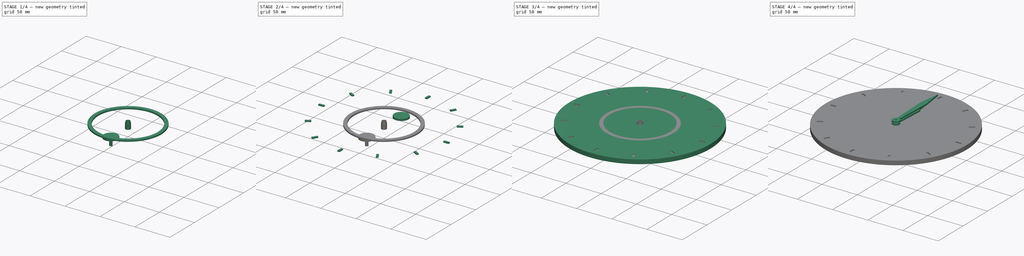
[diagram: build sequence overview — one tinted view per stage of 4, left to right]
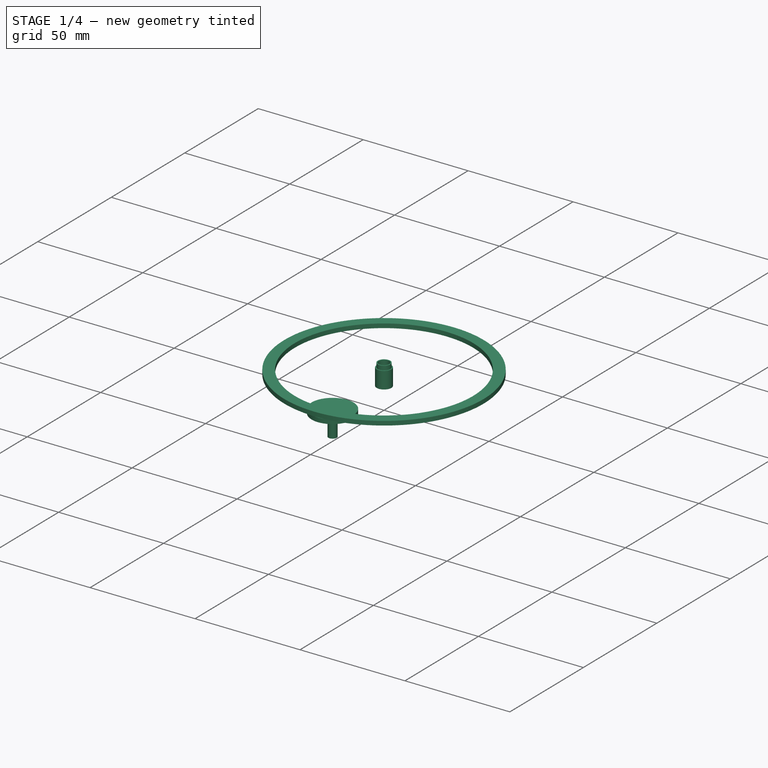
[diagram: stage 1 of 4 — iso view after this stage's code; geometry added in this stage tinted green]
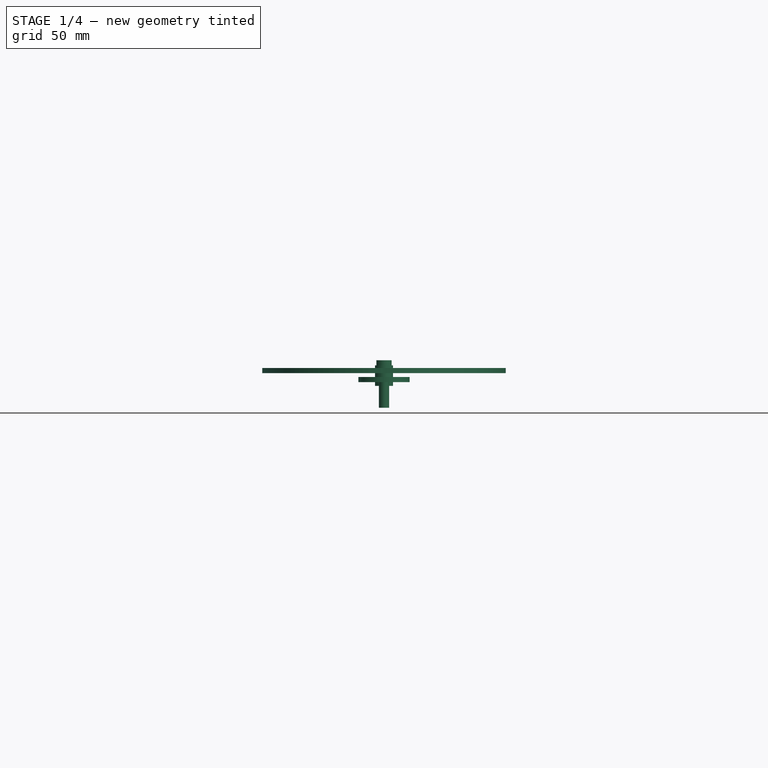
[diagram: stage 1 of 4 — front view after this stage's code; geometry added in this stage tinted green]
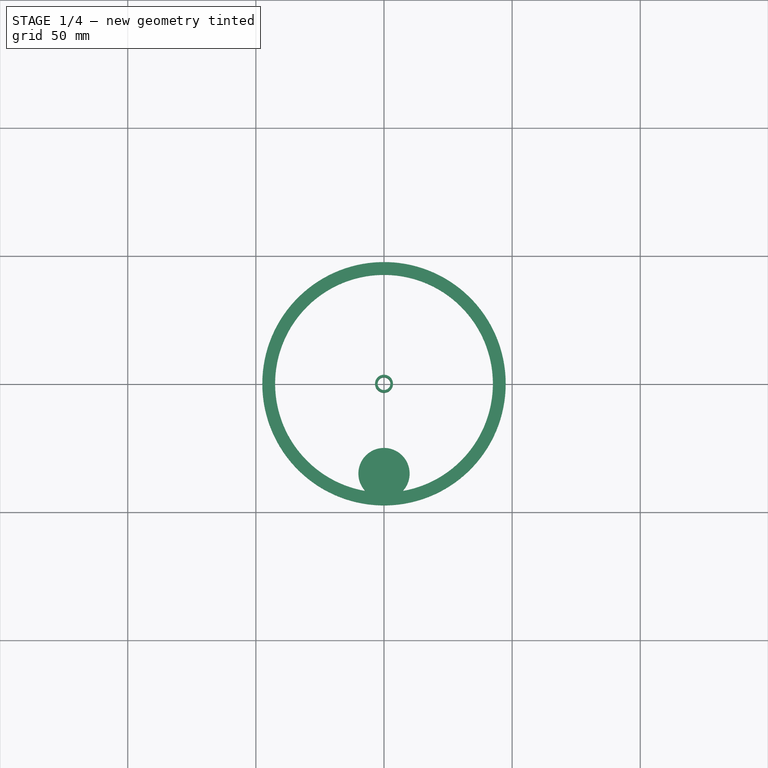
[diagram: stage 1 of 4 — top view after this stage's code; geometry added in this stage tinted green]
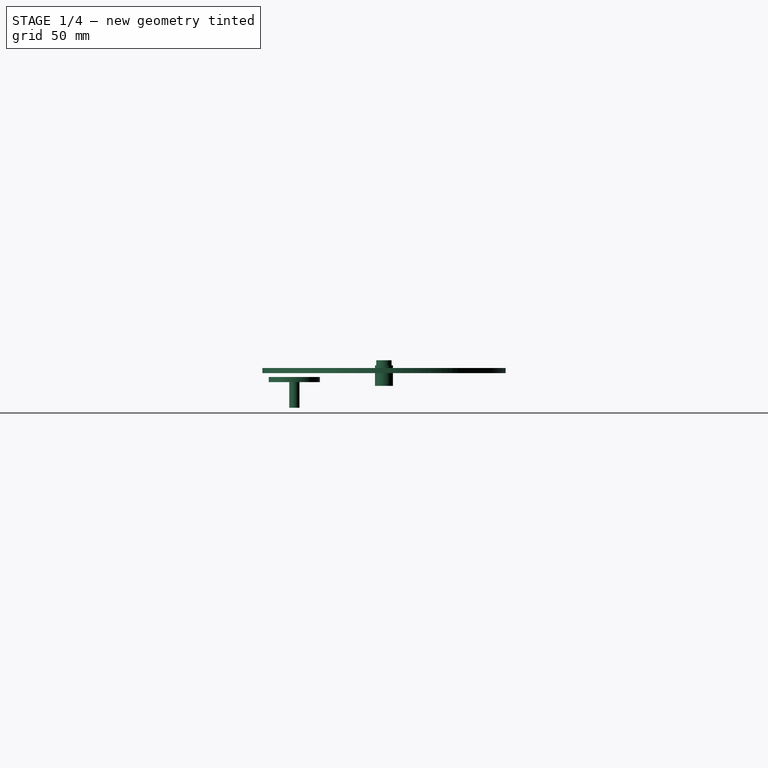
[diagram: stage 1 of 4 — right view after this stage's code; geometry added in this stage tinted green]
FCSTD DOCUMENT  (FreeCAD 0.21R33492 (Git))
Label: ClockFace
License: All rights reserved
LicenseURL: http://en.wikipedia.org/wiki/All_rights_reserved
objects: Sketcher::SketchObject×22, Part::Extrusion×6, Part::FeaturePython×3, Part::Revolution×3, Spreadsheet::Sheet×1, Part::MultiFuse×1, Part::Cut×1
note: 36 computed .brp shape members not serialized (recipe doc carries the construction recipe); baked Part::Feature solids carry a one-line shape summary decoded from their .brp

FEATURE [Sketcher::SketchObject] Sketch022  label="HourHandClipShape"
  FullyConstrained = true
  Placement = pos=(0,0,0) rot=(0.57735,0.57735,0.57735;2.0944rad)
  sketch-geometry (6):
    g0: LineSegment StartX=2.5 StartY=-7 StartZ=0 EndX=3.5 EndY=-7 EndZ=0
    g1: LineSegment StartX=3.5 StartY=-7 StartZ=0 EndX=3.5 EndY=1 EndZ=0
    g2: LineSegment StartX=3.5 StartY=1 StartZ=0 EndX=3 EndY=1 EndZ=0
    g3: LineSegment StartX=3 StartY=1 StartZ=0 EndX=3 EndY=3 EndZ=0
    g4: LineSegment StartX=3 StartY=3 StartZ=0 EndX=2.5 EndY=3 EndZ=0
    g5: LineSegment StartX=2.5 StartY=3 StartZ=0 EndX=2.5 EndY=-7 EndZ=0
  constraints (18):
    c: Horizontal(g0)
    c: Coincident(g1,g0)
    c: Vertical(g1)
    c: Coincident(g2,g1)
    c: Horizontal(g2)
    c: Coincident(g3,g2)
    c: Vertical(g3)
    c: Coincident(g4,g3)
    c: Horizontal(g4)
    c: Coincident(g5,g4)
    c: Vertical(g5)
    c: Coincident(g0,g5)
    c: DistanceX(g-1,g0) = 2.5
    c: DistanceX(g-1,g0) = 3.5
    c: DistanceX(g-1,g3) = 3
    c: DistanceY(g1,g3) = 2
    c: DistanceY(g0,g1) = 8
    c: DistanceY(g-1,g1) = 1
FEATURE [Part::Revolution] Revolve001  label="HourHandClip"
  Angle = 360
  Axis = (0,0,1)
  Base = (0,0,0)
  FaceMakerClass = Part::FaceMakerBullseye
  Solid = true
  Source = -> Sketch022
  Symmetric = false
FEATURE [Part::Revolution] Revolve002  label="DialPlateMountBottom"
  Angle = 360
  Axis = (0,0,1)
  Base = (0,0,0)
  FaceMakerClass = Part::FaceMakerBullseye
  Placement = pos=(0,-35,-5.5) rot=(0,0,1;0rad)
  Solid = true
  Source = -> Sketch020
  Symmetric = false
FEATURE [Sketcher::SketchObject] Sketch023  label="BrassInlayShape001"
  FullyConstrained = true
  sketch-geometry (2):
    g0: Circle CenterX=0 CenterY=0 CenterZ=0 NormalX=0 NormalY=0 NormalZ=1 AngleXU=0 Radius=47.5
    g1: Circle CenterX=0 CenterY=0 CenterZ=0 NormalX=0 NormalY=0 NormalZ=1 AngleXU=0 Radius=42.5
  constraints (4):
    c: Coincident(g0,g-1)
    c: Coincident(g1,g0)
    c: Diameter(g0) = 95
    c: Diameter(g1) = 85
FEATURE [Part::Extrusion] Extrude005  label="DialPlateBrassInlay"
  Base = -> Sketch023
  Dir = (0,0,1)
  DirMode = 2
  FaceMakerClass = Part::FaceMakerBullseye
  LengthFwd = 0
  LengthRev = 2
  Solid = true
  Symmetric = false
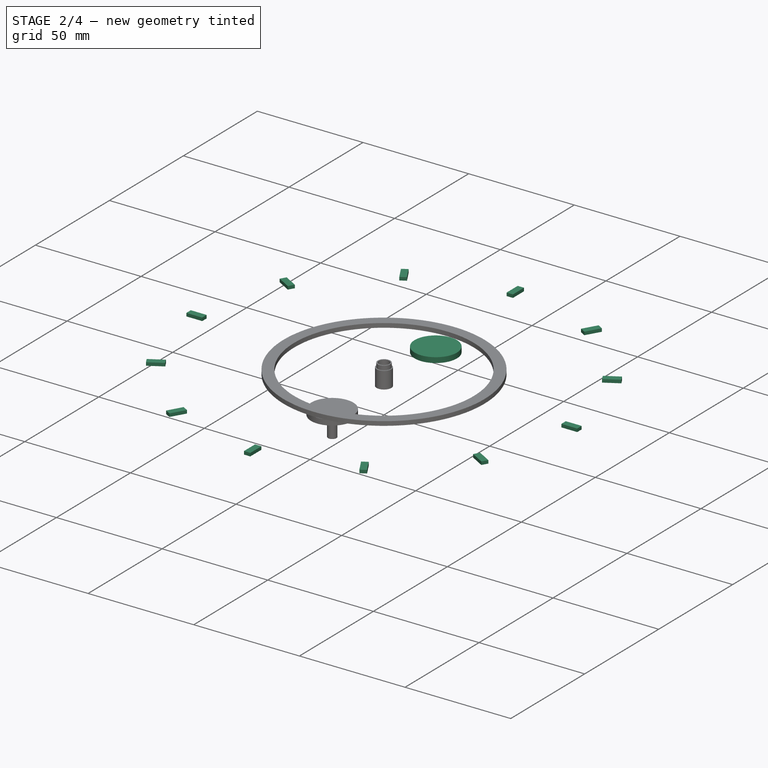
[diagram: stage 2 of 4 — iso view after this stage's code; geometry added in this stage tinted green]
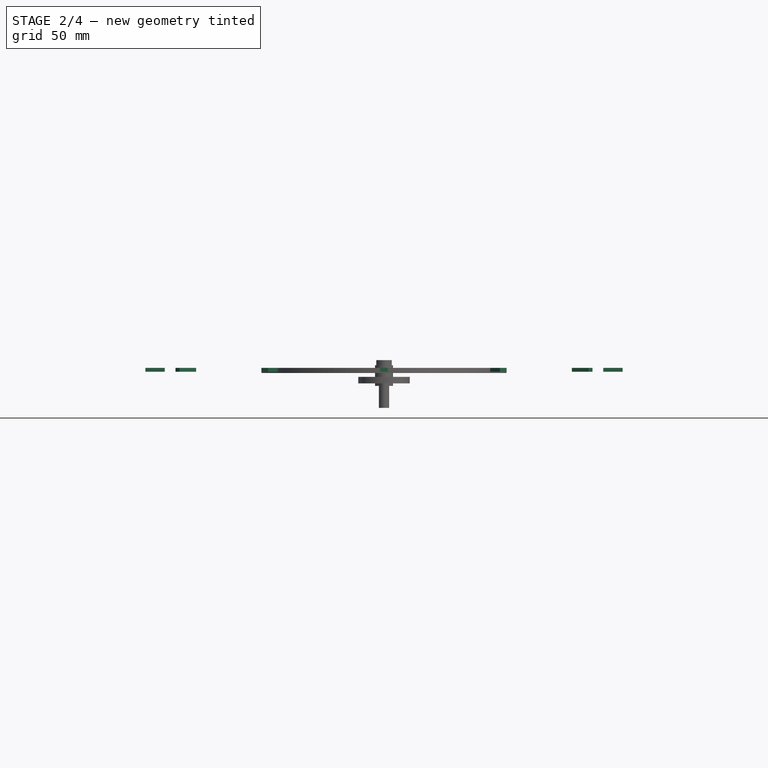
[diagram: stage 2 of 4 — front view after this stage's code; geometry added in this stage tinted green]
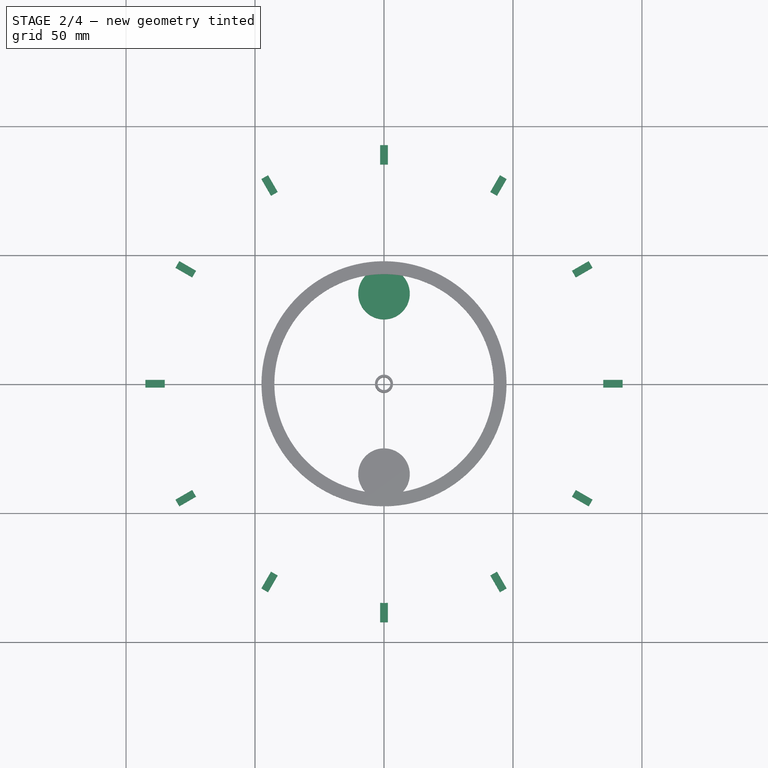
[diagram: stage 2 of 4 — top view after this stage's code; geometry added in this stage tinted green]
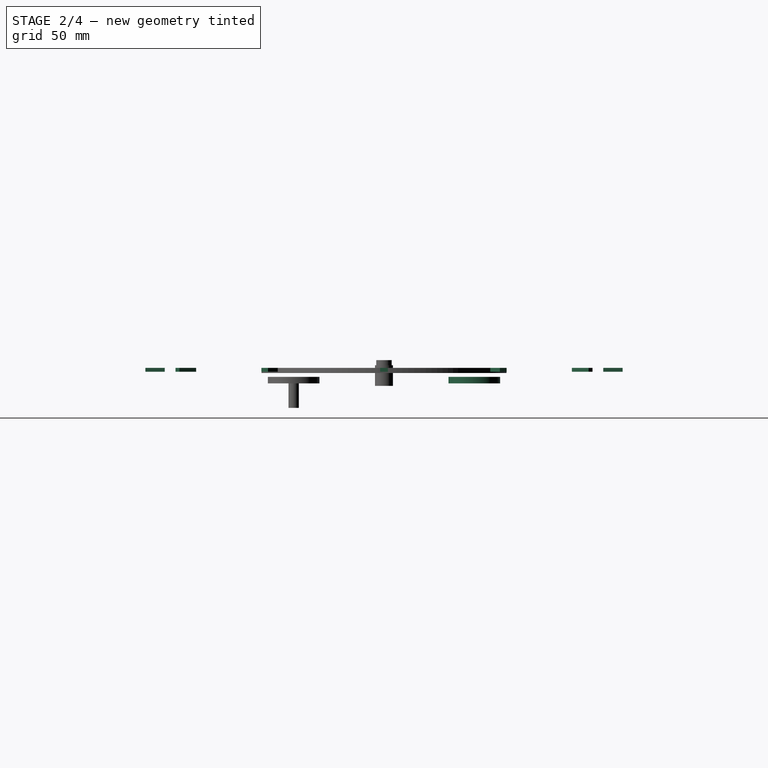
[diagram: stage 2 of 4 — right view after this stage's code; geometry added in this stage tinted green]
FEATURE [Part::Extrusion] Extrude003  label="TenMinuteMarks"
  Base = -> Sketch014
  Dir = (0,0,1)
  DirMode = 2
  FaceMakerClass = Part::FaceMakerBullseye
  LengthFwd = 0
  LengthRev = 1.5
  Solid = true
  Symmetric = false
FEATURE [Part::FeaturePython] Array001  label="TenMinuteMarksArray"  # Draft array (typed FeaturePython)
  Angle = 360
  ArrayType = 1
  Axis = (0,0,1)
  Base = -> Extrude003
  Center = (0,0,0)
  Count = 12
  Fuse = false
  IntervalAxis = (0,0,0)
  IntervalX = (50,0,0)
  IntervalY = (0,50,0)
  IntervalZ = (0,0,50)
  NumberCircles = 3
  NumberPolar = 12
  NumberX = 2
  NumberY = 2
  NumberZ = 1
  RadialDistance = 50
  Symmetry = 1
  TangentialDistance = 25
FEATURE [Sketcher::SketchObject] Sketch021  label="DialPlateMountHolesShape"
  FullyConstrained = true
  Placement = pos=(0,0,-3.5) rot=(0,0,1;0rad)
  sketch-geometry (3):
    g0: Circle CenterX=0 CenterY=0 CenterZ=0 NormalX=0 NormalY=0 NormalZ=1 AngleXU=0 Radius=35
    g1: Circle CenterX=0 CenterY=35 CenterZ=0 NormalX=0 NormalY=0 NormalZ=1 AngleXU=0 Radius=10
    g2: Circle CenterX=0 CenterY=-35 CenterZ=0 NormalX=0 NormalY=0 NormalZ=1 AngleXU=0 Radius=10
  constraints (8):
    c: Coincident(g0,g-1)
    c: Diameter(g0) = 70
    c: PointOnObject(g1,g-2)
    c: PointOnObject(g2,g-2)
    c: PointOnObject(g1,g0)
    c: PointOnObject(g2,g0)
    c: Equal(g1,g2)
    c: Diameter(g1) = 20
FEATURE [Part::Extrusion] Extrude004  label="DialPlateMountHoles"
  Base = -> Sketch021
  Dir = (0,0,1)
  DirMode = 2
  FaceMakerClass = Part::FaceMakerBullseye
  LengthFwd = 0
  LengthRev = 2.5
  Solid = true
  Symmetric = false
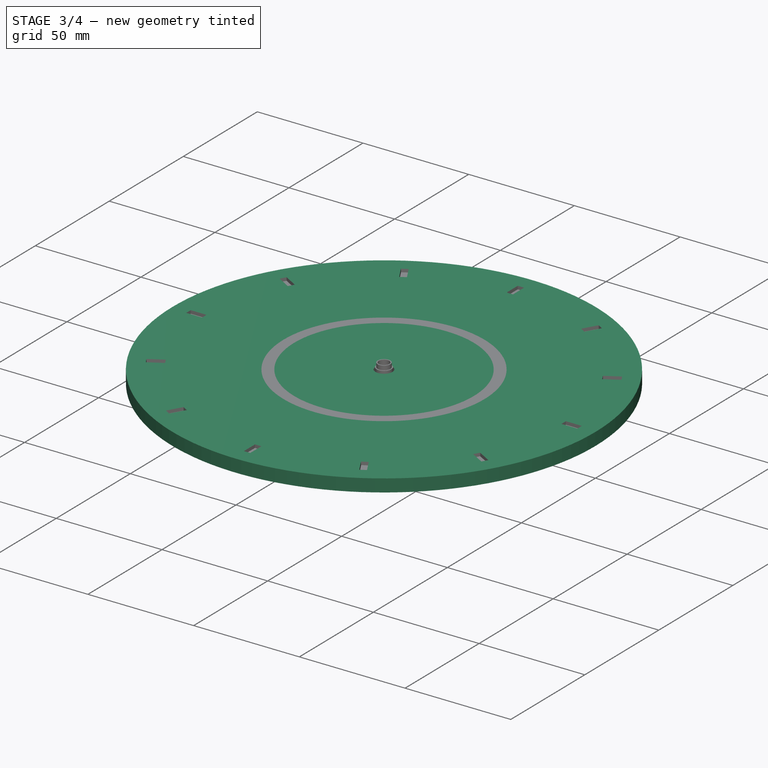
[diagram: stage 3 of 4 — iso view after this stage's code; geometry added in this stage tinted green]
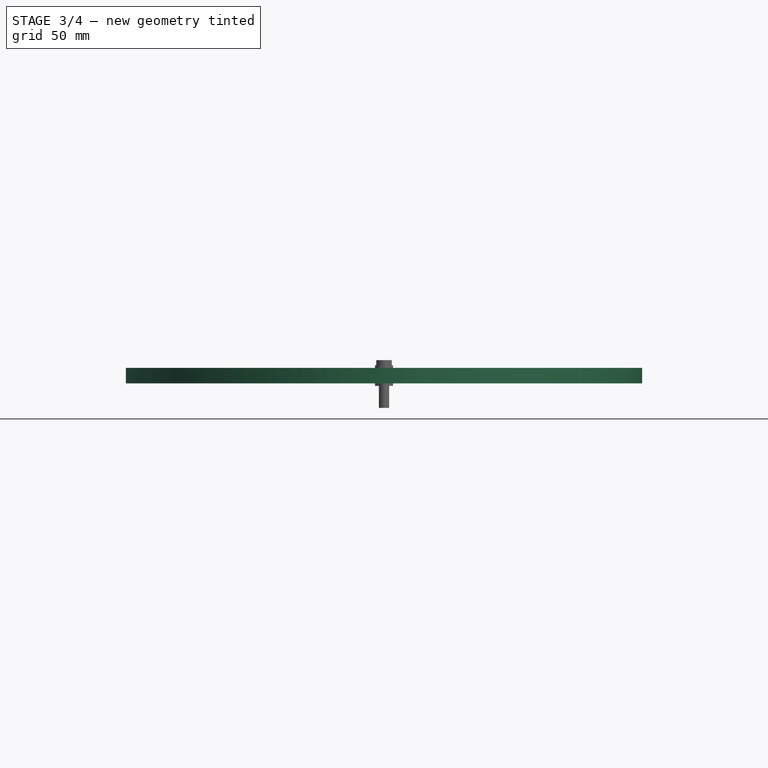
[diagram: stage 3 of 4 — front view after this stage's code; geometry added in this stage tinted green]
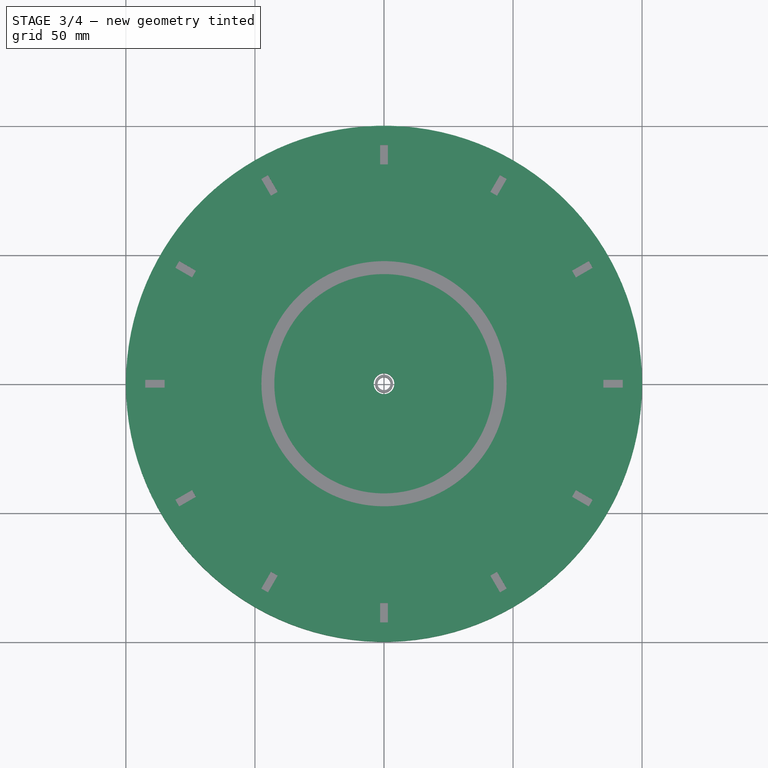
[diagram: stage 3 of 4 — top view after this stage's code; geometry added in this stage tinted green]
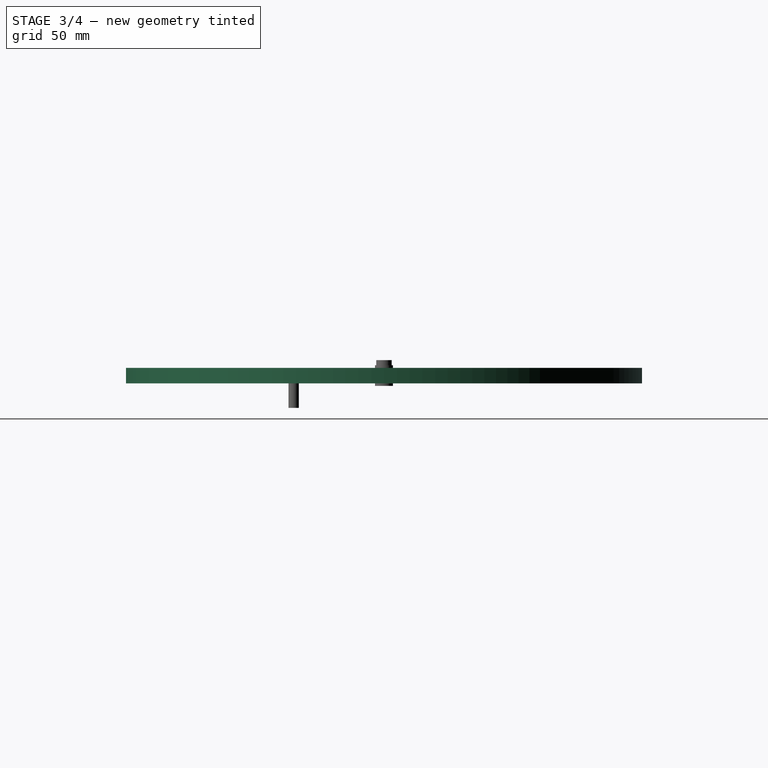
[diagram: stage 3 of 4 — right view after this stage's code; geometry added in this stage tinted green]
FEATURE [Spreadsheet::Sheet] Spreadsheet
  cells = A1=Baseline diameter; B1(baselineDiameter)==125 mm; A2=Character height; B2(characterHeight)==15 mm; A3=Character width; B3(characterWidth)==B2 / 1.6; A4=Angle; B4(angle)==360 ° / 12; A5=Wide character width; B5(wideCharachterWidth)==B3 / 2; A6=Narrow charachter width; B6(narrowCharachterWidth)==B3 / 4
FEATURE [Sketcher::SketchObject] Sketch  label="One"
  FullyConstrained = true
  Placement = pos=(0,0,0) rot=(0,0,-1;0.523599rad)
  expr: Constraints[10] = Spreadsheet.baselineDiameter / 2
  expr: Constraints[8] = Spreadsheet.narrowCharachterWidth * 2
  expr: Constraints[9] = Spreadsheet.characterHeight
  sketch-geometry (7):
    g0: LineSegment StartX=-2.34375 StartY=77.5 StartZ=0 EndX=2.34375 EndY=77.5 EndZ=0
    g1: LineSegment StartX=2.34375 StartY=77.5 StartZ=0 EndX=2.34375 EndY=62.5 EndZ=0
    g2: LineSegment StartX=2.34375 StartY=62.5 StartZ=0 EndX=-2.34375 EndY=62.5 EndZ=0
    g3: LineSegment StartX=-2.34375 StartY=62.5 StartZ=0 EndX=-2.34375 EndY=77.5 EndZ=0
    g4: LineSegment StartX=0 StartY=62.5 StartZ=0 EndX=0 EndY=77.5 EndZ=0
    g5: LineSegment StartX=-2.34375 StartY=77.5 StartZ=0 EndX=2.34375 EndY=77.5 EndZ=0
    g6: LineSegment StartX=-2.34375 StartY=62.5 StartZ=0 EndX=2.34375 EndY=62.5 EndZ=0
  constraints (19):
    c: Coincident(g0,g1)
    c: Coincident(g1,g2)
    c: Coincident(g2,g3)
    c: Coincident(g3,g0)
    c: Horizontal(g0)
    c: Vertical(g1)
    c: Vertical(g3)
    c: Symmetric(g2,g1,g-2)
    c: Distance(g2) = 4.6875
    c: Distance(g1) = 15
    c: DistanceY(g-1,g1) = 62.5
    c: PointOnObject(g4,g-2)
    c: PointOnObject(g4,g-2)
    c: PointOnObject(g4,g5)
    c: Coincident(g5,g0)
    c: Coincident(g5,g0)
    c: PointOnObject(g4,g2)
    c: Coincident(g6,g2)
    c: Coincident(g6,g1)
FEATURE [Sketcher::SketchObject] Sketch001  label="Two"
  FullyConstrained = true
  Placement = pos=(0,0,0) rot=(0,0,-1;1.0472rad)
  expr: Constraints[10] = Spreadsheet.baselineDiameter / 2
  expr: Constraints[20] = Spreadsheet.narrowCharachterWidth
  expr: Constraints[8] = Spreadsheet.narrowCharachterWidth * 3
  expr: Constraints[9] = Spreadsheet.characterHeight
  sketch-geometry (8):
    g0: LineSegment StartX=-3.51562 StartY=77.5 StartZ=0 EndX=3.51562 EndY=77.5 EndZ=0
    g1: LineSegment StartX=3.51562 StartY=77.5 StartZ=0 EndX=3.51562 EndY=62.5 EndZ=0
    g2: LineSegment StartX=3.51562 StartY=62.5 StartZ=0 EndX=-3.51562 EndY=62.5 EndZ=0
    g3: LineSegment StartX=-3.51562 StartY=62.5 StartZ=0 EndX=-3.51562 EndY=77.5 EndZ=0
    g4: LineSegment StartX=-3.51562 StartY=62.5 StartZ=0 EndX=3.51562 EndY=62.5 EndZ=0
    g5: LineSegment StartX=-1.17188 StartY=62.5 StartZ=0 EndX=-1.17188 EndY=77.5 EndZ=0
    g6: LineSegment StartX=1.17188 StartY=62.5 StartZ=0 EndX=1.17188 EndY=77.5 EndZ=0
    g7: LineSegment StartX=-3.51562 StartY=77.5 StartZ=0 EndX=3.51562 EndY=77.5 EndZ=0
  constraints (22):
    c: Coincident(g0,g1)
    c: Coincident(g1,g2)
    c: Coincident(g2,g3)
    c: Coincident(g3,g0)
    c: Horizontal(g0)
    c: Vertical(g1)
    c: Vertical(g3)
    c: Symmetric(g2,g1,g-2)
    c: Distance(g2) = 7.03125
    c: Distance(g1) = 15
    c: DistanceY(g-1,g1) = 62.5
    c: Coincident(g4,g2)
    c: Coincident(g4,g1)
    c: PointOnObject(g5,g4)
    c: Vertical(g5)
    c: Vertical(g6)
    c: Coincident(g7,g0)
    c: Coincident(g7,g0)
    c: PointOnObject(g5,g7)
    c: Symmetric(g5,g6,g-2)
    c: DistanceX(g5,g6) = 2.34375
    c: PointOnObject(g6,g4)
FEATURE [Sketcher::SketchObject] Sketch002  label="Three"
  FullyConstrained = true
  Placement = pos=(0,0,0) rot=(0,0,-1;1.5708rad)
  expr: Constraints[10] = Spreadsheet.baselineDiameter / 2
  expr: Constraints[25] = Spreadsheet.characterWidth / 4 * 2
  expr: Constraints[8] = Spreadsheet.characterWidth
  expr: Constraints[9] = Spreadsheet.characterHeight
  sketch-geometry (9):
    g0: LineSegment StartX=-4.6875 StartY=77.5 StartZ=0 EndX=4.6875 EndY=77.5 EndZ=0
    g1: LineSegment StartX=4.6875 StartY=77.5 StartZ=0 EndX=4.6875 EndY=62.5 EndZ=0
    g2: LineSegment StartX=4.6875 StartY=62.5 StartZ=0 EndX=-4.6875 EndY=62.5 EndZ=0
    g3: LineSegment StartX=-4.6875 StartY=62.5 StartZ=0 EndX=-4.6875 EndY=77.5 EndZ=0
    g4: LineSegment StartX=0 StartY=62.5 StartZ=0 EndX=0 EndY=77.5 EndZ=0
    g5: LineSegment StartX=-4.6875 StartY=77.5 StartZ=0 EndX=4.6875 EndY=77.5 EndZ=0
    g6: LineSegment StartX=-4.6875 StartY=62.5 StartZ=0 EndX=4.6875 EndY=62.5 EndZ=0
    g7: LineSegment StartX=-2.34375 StartY=77.5 StartZ=0 EndX=-2.34375 EndY=62.5 EndZ=0
    g8: LineSegment StartX=2.34375 StartY=62.5 StartZ=0 EndX=2.34375 EndY=77.5 EndZ=0
  constraints (26):
    c: Coincident(g0,g1)
    c: Coincident(g1,g2)
    c: Coincident(g2,g3)
    c: Coincident(g3,g0)
    c: Horizontal(g0)
    c: Vertical(g1)
    c: Vertical(g3)
    c: Symmetric(g2,g1,g-2)
    c: Distance(g2) = 9.375
    c: Distance(g1) = 15
    c: DistanceY(g-1,g1) = 62.5
    c: PointOnObject(g4,g-2)
    c: PointOnObject(g4,g-2)
    c: PointOnObject(g4,g5)
    c: Coincident(g5,g0)
    c: Coincident(g5,g0)
    c: PointOnObject(g4,g2)
    c: Coincident(g6,g2)
    c: Coincident(g6,g1)
    c: PointOnObject(g7,g5)
    c: PointOnObject(g7,g6)
    c: Vertical(g7)
    c: PointOnObject(g8,g5)
    c: Vertical(g8)
    c: Symmetric(g7,g8,g4)
    c: DistanceX(g7,g8) = 4.6875
FEATURE [Sketcher::SketchObject] Sketch003  label="Four"
  FullyConstrained = true
  Placement = pos=(0,0,0) rot=(0,0,1;4.18879rad)
  expr: .Placement.Rotation.Yaw = -Spreadsheet.angle * 4
  expr: Constraints[13] = Spreadsheet.characterWidth / 2
  expr: Constraints[30] = Spreadsheet.characterWidth / 2
  expr: Constraints[5] = Spreadsheet.wideCharachterWidth + Spreadsheet.narrowCharachterWidth * 3
  expr: Constraints[6] = Spreadsheet.characterHeight
  expr: Constraints[7] = Spreadsheet.baselineDiameter / 2
  sketch-geometry (15):
    g0: LineSegment StartX=5.85938 StartY=77.5 StartZ=0 EndX=5.85938 EndY=62.5 EndZ=0
    g1: LineSegment StartX=5.85938 StartY=62.5 StartZ=0 EndX=-5.85938 EndY=62.5 EndZ=0
    g2: LineSegment StartX=-5.85938 StartY=62.5 StartZ=0 EndX=-5.85938 EndY=77.5 EndZ=0
    g3: LineSegment StartX=-5.85938 StartY=62.5 StartZ=0 EndX=5.85938 EndY=62.5 EndZ=0
    g4: LineSegment StartX=-1.17187 StartY=77.5 StartZ=0 EndX=1.17188 EndY=62.5 EndZ=0
    g5: LineSegment StartX=1.17188 StartY=62.5 StartZ=0 EndX=3.51562 EndY=77.5 EndZ=0
    g6: LineSegment StartX=-3.51562 StartY=77.5 StartZ=0 EndX=-3.51562 EndY=62.5 EndZ=0
    g7: LineSegment StartX=-1.17187 StartY=77.5 StartZ=0 EndX=1.17188 EndY=77.5 EndZ=0
    g8: LineSegment StartX=1.17188 StartY=77.5 StartZ=0 EndX=3.51562 EndY=77.5 EndZ=0
    g9: LineSegment StartX=-5.85938 StartY=77.5 StartZ=0 EndX=-3.51562 EndY=77.5 EndZ=0
    g10: LineSegment StartX=-3.51562 StartY=77.5 StartZ=0 EndX=-1.17187 EndY=77.5 EndZ=0
    g11: LineSegment StartX=3.51562 StartY=77.5 StartZ=0 EndX=5.85938 EndY=77.5 EndZ=0
    g12: LineSegment StartX=-5.85938 StartY=77.5 StartZ=0 EndX=-3.51562 EndY=77.5 EndZ=0
    g13: LineSegment StartX=-3.51562 StartY=77.5 StartZ=0 EndX=3.51562 EndY=77.5 EndZ=0
    g14: LineSegment StartX=3.51562 StartY=77.5 StartZ=0 EndX=5.85938 EndY=77.5 EndZ=0
  constraints (39):
    c: Coincident(g0,g1)
    c: Coincident(g1,g2)
    c: Vertical(g0)
    c: Vertical(g2)
    c: Symmetric(g1,g0,g-2)
    c: Distance(g1) = 11.7188
    c: Distance(g0) = 15
    c: DistanceY(g-1,g0) = 62.5
    c: Coincident(g3,g1)
    c: Coincident(g3,g0)
    c: PointOnObject(g4,g3)
    c: Coincident(g5,g4)
    c: Vertical(g6)
    c: DistanceX(g6,g4) = 4.6875
    c: Coincident(g7,g4)
    c: Coincident(g8,g7)
    c: Coincident(g8,g5)
    c: Equal(g7,g8)
    c: Vertical(g7,g4)
    c: Coincident(g9,g2)
    c: Coincident(g9,g6)
    c: Horizontal(g9)
    c: Coincident(g10,g6)
    c: Coincident(g10,g4)
    c: Horizontal(g10)
    c: Coincident(g11,g5)
    c: Coincident(g11,g0)
    c: Horizontal(g11)
    c: Horizontal(g7)
    c: Horizontal(g8)
    c: DistanceX(g4,g5) = 4.6875
    c: Coincident(g12,g2)
    c: Coincident(g12,g6)
    c: Coincident(g13,g6)
    c: Coincident(g13,g5)
    c: Coincident(g14,g5)
    c: Coincident(g14,g0)
    c: Equal(g12,g14)
    c: PointOnObject(g6,g3)
FEATURE [Sketcher::SketchObject] Sketch004  label="Five"
  FullyConstrained = true
  Placement = pos=(0,0,0) rot=(0,0,1;3.66519rad)
  expr: Constraints[10] = Spreadsheet.baselineDiameter / 2
  expr: Constraints[20] = Spreadsheet.characterWidth / 2
  expr: Constraints[8] = Spreadsheet.characterWidth
  expr: Constraints[9] = Spreadsheet.characterHeight
  sketch-geometry (8):
    g0: LineSegment StartX=-4.6875 StartY=77.5 StartZ=0 EndX=4.6875 EndY=77.5 EndZ=0
    g1: LineSegment StartX=4.6875 StartY=77.5 StartZ=0 EndX=4.6875 EndY=62.5 EndZ=0
    g2: LineSegment StartX=4.6875 StartY=62.5 StartZ=0 EndX=-4.6875 EndY=62.5 EndZ=0
    g3: LineSegment StartX=-4.6875 StartY=62.5 StartZ=0 EndX=-4.6875 EndY=77.5 EndZ=0
    g4: LineSegment StartX=-4.6875 StartY=77.5 StartZ=0 EndX=4.6875 EndY=77.5 EndZ=0
    g5: LineSegment StartX=-4.6875 StartY=62.5 StartZ=0 EndX=4.6875 EndY=62.5 EndZ=0
    g6: LineSegment StartX=0 StartY=62.5 StartZ=0 EndX=-2.34375 EndY=77.5 EndZ=0
    g7: LineSegment StartX=0 StartY=62.5 StartZ=0 EndX=2.34375 EndY=77.5 EndZ=0
  constraints (21):
    c: Coincident(g0,g1)
    c: Coincident(g1,g2)
    c: Coincident(g2,g3)
    c: Coincident(g3,g0)
    c: Horizontal(g0)
    c: Vertical(g1)
    c: Vertical(g3)
    c: Symmetric(g2,g1,g-2)
    c: Distance(g2) = 9.375
    c: Distance(g1) = 15
    c: DistanceY(g-1,g1) = 62.5
    c: Coincident(g4,g0)
    c: Coincident(g4,g0)
    c: Coincident(g5,g2)
    c: Coincident(g5,g1)
    c: PointOnObject(g6,g-2)
    c: PointOnObject(g6,g4)
    c: Coincident(g7,g6)
    c: PointOnObject(g6,g5)
    c: Symmetric(g6,g7,g-2)
    c: DistanceX(g6,g7) = 4.6875
FEATURE [Sketcher::SketchObject] Sketch005  label="Six"
  FullyConstrained = true
  Placement = pos=(0,0,0) rot=(0,0,1;3.14159rad)
  expr: .Placement.Rotation.Yaw = -Spreadsheet.angle * 6
  expr: Constraints[21] = Spreadsheet.characterWidth / 2
  expr: Constraints[31] = Spreadsheet.characterWidth / 2
  expr: Constraints[5] = Spreadsheet.wideCharachterWidth + Spreadsheet.narrowCharachterWidth * 3
  expr: Constraints[6] = Spreadsheet.characterHeight
  expr: Constraints[7] = Spreadsheet.baselineDiameter / 2
  sketch-geometry (13):
    g0: LineSegment StartX=5.85938 StartY=77.5 StartZ=0 EndX=5.85938 EndY=62.5 EndZ=0
    g1: LineSegment StartX=5.85938 StartY=62.5 StartZ=0 EndX=-5.85938 EndY=62.5 EndZ=0
    g2: LineSegment StartX=-5.85938 StartY=62.5 StartZ=0 EndX=-5.85938 EndY=77.5 EndZ=0
    g3: LineSegment StartX=-5.85938 StartY=62.5 StartZ=0 EndX=5.85938 EndY=62.5 EndZ=0
    g4: LineSegment StartX=-3.51562 StartY=77.5 StartZ=0 EndX=-1.17187 EndY=62.5 EndZ=0
    g5: LineSegment StartX=-1.17187 StartY=62.5 StartZ=0 EndX=1.17188 EndY=77.5 EndZ=0
    g6: LineSegment StartX=-3.51562 StartY=77.5 StartZ=0 EndX=-1.17187 EndY=77.5 EndZ=0
    g7: LineSegment StartX=-1.17187 StartY=77.5 StartZ=0 EndX=1.17188 EndY=77.5 EndZ=0
    g8: LineSegment StartX=-5.85938 StartY=77.5 StartZ=0 EndX=-3.51562 EndY=77.5 EndZ=0
    g9: LineSegment StartX=1.17188 StartY=77.5 StartZ=0 EndX=3.51562 EndY=77.5 EndZ=0
    g10: LineSegment StartX=3.51562 StartY=77.5 StartZ=0 EndX=5.85938 EndY=77.5 EndZ=0
    g11: LineSegment StartX=3.51562 StartY=77.5 StartZ=0 EndX=3.51562 EndY=62.5 EndZ=0
    g12: LineSegment StartX=-5.85938 StartY=77.5 StartZ=0 EndX=5.85938 EndY=77.5 EndZ=0
  constraints (35):
    c: Coincident(g0,g1)
    c: Coincident(g1,g2)
    c: Vertical(g0)
    c: Vertical(g2)
    c: Symmetric(g1,g0,g-2)
    c: Distance(g1) = 11.7188
    c: Distance(g0) = 15
    c: DistanceY(g-1,g0) = 62.5
    c: Coincident(g3,g1)
    c: Coincident(g3,g0)
    c: PointOnObject(g4,g3)
    c: Coincident(g5,g4)
    c: Coincident(g6,g4)
    c: Coincident(g7,g6)
    c: Coincident(g7,g5)
    c: Equal(g6,g7)
    c: Vertical(g6,g4)
    c: Coincident(g8,g2)
    c: Horizontal(g8)
    c: Horizontal(g6)
    c: Horizontal(g7)
    c: DistanceX(g4,g5) = 4.6875
    c: Coincident(g8,g4)
    c: Coincident(g9,g5)
    c: Horizontal(g9)
    c: Coincident(g10,g9)
    c: Coincident(g10,g0)
    c: Horizontal(g10)
    c: Coincident(g11,g9)
    c: PointOnObject(g11,g3)
    c: Vertical(g11)
    c: DistanceX(g4,g11) = 4.6875
    c: Equal(g8,g10)
    c: Coincident(g12,g2)
    c: Coincident(g12,g0)
FEATURE [Sketcher::SketchObject] Sketch006  label="Seven"
  FullyConstrained = true
  Placement = pos=(0,0,0) rot=(0,0,1;2.61799rad)
  expr: .Placement.Rotation.Yaw = -Spreadsheet.angle * 7
  expr: Constraints[21] = Spreadsheet.characterWidth / 2
  expr: Constraints[5] = Spreadsheet.wideCharachterWidth + Spreadsheet.narrowCharachterWidth * 4
  expr: Constraints[6] = Spreadsheet.characterHeight
  expr: Constraints[7] = Spreadsheet.baselineDiameter / 2
  sketch-geometry (15):
    g0: LineSegment StartX=7.03125 StartY=77.5 StartZ=0 EndX=7.03125 EndY=62.5 EndZ=0
    g1: LineSegment StartX=7.03125 StartY=62.5 StartZ=0 EndX=-7.03125 EndY=62.5 EndZ=0
    g2: LineSegment StartX=-7.03125 StartY=62.5 StartZ=0 EndX=-7.03125 EndY=77.5 EndZ=0
    g3: LineSegment StartX=-7.03125 StartY=62.5 StartZ=0 EndX=7.03125 EndY=62.5 EndZ=0
    g4: LineSegment StartX=-4.6875 StartY=77.5 StartZ=0 EndX=-2.34375 EndY=62.5 EndZ=0
    g5: LineSegment StartX=-2.34375 StartY=62.5 StartZ=0 EndX=0 EndY=77.5 EndZ=0
    g6: LineSegment StartX=-4.6875 StartY=77.5 StartZ=0 EndX=-2.34375 EndY=77.5 EndZ=0
    g7: LineSegment StartX=-2.34375 StartY=77.5 StartZ=0 EndX=0 EndY=77.5 EndZ=0
    g8: LineSegment StartX=-7.03125 StartY=77.5 StartZ=0 EndX=-4.6875 EndY=77.5 EndZ=0
    g9: LineSegment StartX=2e-16 StartY=77.5 StartZ=0 EndX=2.34375 EndY=77.5 EndZ=0
    g10: LineSegment StartX=2.34375 StartY=77.5 StartZ=0 EndX=2.34375 EndY=62.5 EndZ=0
    g11: LineSegment StartX=2.34375 StartY=77.5 StartZ=0 EndX=4.6875 EndY=77.5 EndZ=0
    g12: LineSegment StartX=4.6875 StartY=77.5 StartZ=0 EndX=7.03125 EndY=77.5 EndZ=0
    g13: LineSegment StartX=4.6875 StartY=77.5 StartZ=0 EndX=4.6875 EndY=62.5 EndZ=0
    g14: LineSegment StartX=-7.03125 StartY=77.5 StartZ=0 EndX=7.03125 EndY=77.5 EndZ=0
  constraints (41):
    c: Coincident(g0,g1)
    c: Coincident(g1,g2)
    c: Vertical(g0)
    c: Vertical(g2)
    c: Symmetric(g1,g0,g-2)
    c: Distance(g1) = 14.0625
    c: Distance(g0) = 15
    c: DistanceY(g-1,g0) = 62.5
    c: Coincident(g3,g1)
    c: Coincident(g3,g0)
    c: PointOnObject(g4,g3)
    c: Coincident(g5,g4)
    c: Coincident(g6,g4)
    c: Coincident(g7,g6)
    c: Coincident(g7,g5)
    c: Equal(g6,g7)
    c: Vertical(g6,g4)
    c: Coincident(g8,g2)
    c: Horizontal(g8)
    c: Horizontal(g6)
    c: Horizontal(g7)
    c: DistanceX(g4,g5) = 4.6875
    c: Coincident(g8,g4)
    c: Coincident(g9,g5)
    c: Horizontal(g9)
    c: Coincident(g10,g9)
    c: PointOnObject(g10,g3)
    c: Vertical(g10)
    c: Coincident(g11,g10)
    c: Horizontal(g11)
    c: Coincident(g12,g11)
    c: Coincident(g12,g0)
    c: Horizontal(g12)
    c: Coincident(g13,g11)
    c: PointOnObject(g13,g3)
    c: Vertical(g13)
    c: Equal(g8,g9)
    c: Equal(g8,g11)
    c: Equal(g8,g12)
    c: Coincident(g14,g2)
    c: Coincident(g14,g0)
FEATURE [Sketcher::SketchObject] Sketch007  label="Eight"
  FullyConstrained = true
  Placement = pos=(0,0,0) rot=(0,0,1;2.0944rad)
  expr: Constraints[21] = Spreadsheet.characterWidth / 2
  expr: Constraints[5] = Spreadsheet.wideCharachterWidth + Spreadsheet.narrowCharachterWidth * 5
  expr: Constraints[6] = Spreadsheet.characterHeight
  expr: Constraints[7] = Spreadsheet.baselineDiameter / 2
  sketch-geometry (17):
    g0: LineSegment StartX=8.20312 StartY=77.5 StartZ=0 EndX=8.20312 EndY=62.5 EndZ=0
    g1: LineSegment StartX=8.20312 StartY=62.5 StartZ=0 EndX=-8.20312 EndY=62.5 EndZ=0
    g2: LineSegment StartX=-8.20312 StartY=62.5 StartZ=0 EndX=-8.20312 EndY=77.5 EndZ=0
    g3: LineSegment StartX=-8.20312 StartY=62.5 StartZ=0 EndX=8.20312 EndY=62.5 EndZ=0
    g4: LineSegment StartX=-5.85938 StartY=77.5 StartZ=0 EndX=-3.51562 EndY=62.5 EndZ=0
    g5: LineSegment StartX=-3.51562 StartY=62.5 StartZ=0 EndX=-1.17187 EndY=77.5 EndZ=0
    g6: LineSegment StartX=-5.85938 StartY=77.5 StartZ=0 EndX=-3.51562 EndY=77.5 EndZ=0
    g7: LineSegment StartX=-3.51562 StartY=77.5 StartZ=0 EndX=-1.17187 EndY=77.5 EndZ=0
    g8: LineSegment StartX=-8.20312 StartY=77.5 StartZ=0 EndX=-5.85938 EndY=77.5 EndZ=0
    g9: LineSegment StartX=-1.17187 StartY=77.5 StartZ=0 EndX=1.17188 EndY=77.5 EndZ=0
    g10: LineSegment StartX=1.17188 StartY=77.5 StartZ=0 EndX=1.17188 EndY=62.5 EndZ=0
    g11: LineSegment StartX=1.17188 StartY=77.5 StartZ=0 EndX=3.51562 EndY=77.5 EndZ=0
    g12: LineSegment StartX=3.51562 StartY=77.5 StartZ=0 EndX=3.51562 EndY=62.5 EndZ=0
    g13: LineSegment StartX=3.51562 StartY=77.5 StartZ=0 EndX=5.85938 EndY=77.5 EndZ=0
    g14: LineSegment StartX=5.85938 StartY=77.5 StartZ=0 EndX=8.20312 EndY=77.5 EndZ=0
    g15: LineSegment StartX=5.85938 StartY=77.5 StartZ=0 EndX=5.85938 EndY=62.5 EndZ=0
    g16: LineSegment StartX=-8.20312 StartY=77.5 StartZ=0 EndX=8.20312 EndY=77.5 EndZ=0
  constraints (47):
    c: Coincident(g0,g1)
    c: Coincident(g1,g2)
    c: Vertical(g0)
    c: Vertical(g2)
    c: Symmetric(g1,g0,g-2)
    c: Distance(g1) = 16.4062
    c: Distance(g0) = 15
    c: DistanceY(g-1,g0) = 62.5
    c: Coincident(g3,g1)
    c: Coincident(g3,g0)
    c: PointOnObject(g4,g3)
    c: Coincident(g5,g4)
    c: Coincident(g6,g4)
    c: Coincident(g7,g6)
    c: Coincident(g7,g5)
    c: Equal(g6,g7)
    c: Vertical(g6,g4)
    c: Coincident(g8,g2)
    c: Horizontal(g8)
    c: Horizontal(g6)
    c: Horizontal(g7)
    c: DistanceX(g4,g5) = 4.6875
    c: Coincident(g8,g4)
    c: Coincident(g9,g5)
    c: Horizontal(g9)
    c: Coincident(g10,g9)
    c: PointOnObject(g10,g3)
    c: Vertical(g10)
    c: Coincident(g11,g10)
    c: Horizontal(g11)
    c: Coincident(g12,g11)
    c: PointOnObject(g12,g3)
    c: Vertical(g12)
    c: Equal(g8,g9)
    c: Equal(g8,g11)
    c: Coincident(g13,g12)
    c: Horizontal(g13)
    c: Coincident(g14,g13)
    c: Coincident(g14,g0)
    c: Horizontal(g14)
    c: Coincident(g15,g13)
    c: PointOnObject(g15,g3)
    c: Vertical(g15)
    c: Equal(g13,g8)
    c: Equal(g8,g14)
    c: Coincident(g16,g2)
    c: Coincident(g16,g0)
FEATURE [Sketcher::SketchObject] Sketch008  label="Nine"
  FullyConstrained = true
  Placement = pos=(0,0,0) rot=(0,0,1;1.5708rad)
  expr: Constraints[30] = Spreadsheet.characterWidth / 2
  expr: Constraints[5] = Spreadsheet.wideCharachterWidth + Spreadsheet.narrowCharachterWidth * 3
  expr: Constraints[6] = Spreadsheet.characterHeight
  expr: Constraints[7] = Spreadsheet.baselineDiameter / 2
  sketch-geometry (13):
    g0: LineSegment StartX=5.85938 StartY=77.5 StartZ=0 EndX=5.85938 EndY=62.5 EndZ=0
    g1: LineSegment StartX=5.85938 StartY=62.5 StartZ=0 EndX=-5.85938 EndY=62.5 EndZ=0
    g2: LineSegment StartX=-5.85938 StartY=62.5 StartZ=0 EndX=-5.85938 EndY=77.5 EndZ=0
    g3: LineSegment StartX=-5.85938 StartY=62.5 StartZ=0 EndX=5.85938 EndY=62.5 EndZ=0
    g4: LineSegment StartX=-1.17187 StartY=62.5 StartZ=0 EndX=3.51562 EndY=77.5 EndZ=0
    g5: LineSegment StartX=-1.17187 StartY=77.5 StartZ=0 EndX=3.51562 EndY=62.5 EndZ=0
    g6: LineSegment StartX=-3.51562 StartY=77.5 StartZ=0 EndX=-3.51562 EndY=62.5 EndZ=0
    g7: GeomPoint X=1.17188 Y=70 Z=0
    g8: LineSegment StartX=-5.85938 StartY=77.5 StartZ=0 EndX=-3.51562 EndY=77.5 EndZ=0
    g9: LineSegment StartX=-3.51562 StartY=77.5 StartZ=0 EndX=-1.17188 EndY=77.5 EndZ=0
    g10: LineSegment StartX=-1.17187 StartY=77.5 StartZ=0 EndX=3.51562 EndY=77.5 EndZ=0
    g11: LineSegment StartX=3.51562 StartY=77.5 StartZ=0 EndX=5.85938 EndY=77.5 EndZ=0
    g12: LineSegment StartX=-5.85938 StartY=77.5 StartZ=0 EndX=5.85938 EndY=77.5 EndZ=0
  constraints (35):
    c: Coincident(g0,g1)
    c: Coincident(g1,g2)
    c: Vertical(g0)
    c: Vertical(g2)
    c: Symmetric(g1,g0,g-2)
    c: Distance(g1) = 11.7188
    c: Distance(g0) = 15
    c: DistanceY(g-1,g0) = 62.5
    c: Coincident(g3,g1)
    c: Coincident(g3,g0)
    c: PointOnObject(g4,g3)
    c: PointOnObject(g5,g3)
    c: PointOnObject(g6,g3)
    c: Vertical(g6)
    c: PointOnObject(g7,g4)
    c: PointOnObject(g7,g5)
    c: Coincident(g8,g2)
    c: Coincident(g8,g6)
    c: Horizontal(g8)
    c: Coincident(g9,g6)
    c: Coincident(g9,g5)
    c: Horizontal(g9)
    c: Coincident(g10,g5)
    c: Coincident(g10,g4)
    c: Horizontal(g10)
    c: Coincident(g11,g4)
    c: Coincident(g11,g0)
    c: Horizontal(g11)
    c: Equal(g11,g9)
    c: Equal(g11,g8)
    c: DistanceX(g5,g4) = 4.6875
    c: Vertical(g5,g4)
    c: Vertical(g4,g5)
    c: Coincident(g12,g2)
    c: Coincident(g12,g0)
FEATURE [Sketcher::SketchObject] Sketch009  label="Ten"
  FullyConstrained = true
  Placement = pos=(0,0,0) rot=(0,0,1;1.0472rad)
  expr: Constraints[23] = Spreadsheet.characterWidth / 2
  expr: Constraints[5] = Spreadsheet.characterWidth
  expr: Constraints[6] = Spreadsheet.characterHeight
  expr: Constraints[7] = Spreadsheet.baselineDiameter / 2
  sketch-geometry (11):
    g0: LineSegment StartX=4.6875 StartY=77.5 StartZ=0 EndX=4.6875 EndY=62.5 EndZ=0
    g1: LineSegment StartX=4.6875 StartY=62.5 StartZ=0 EndX=-4.6875 EndY=62.5 EndZ=0
    g2: LineSegment StartX=-4.6875 StartY=62.5 StartZ=0 EndX=-4.6875 EndY=77.5 EndZ=0
    g3: LineSegment StartX=-4.6875 StartY=62.5 StartZ=0 EndX=4.6875 EndY=62.5 EndZ=0
    g4: LineSegment StartX=-2.34375 StartY=62.5 StartZ=0 EndX=2.34375 EndY=77.5 EndZ=0
    g5: LineSegment StartX=-2.34375 StartY=77.5 StartZ=0 EndX=2.34375 EndY=62.5 EndZ=0
    g6: GeomPoint X=-1.1e-15 Y=70 Z=0
    g7: LineSegment StartX=-4.6875 StartY=77.5 StartZ=0 EndX=-2.34375 EndY=77.5 EndZ=0
    g8: LineSegment StartX=-2.34375 StartY=77.5 StartZ=0 EndX=2.34375 EndY=77.5 EndZ=0
    g9: LineSegment StartX=2.34375 StartY=77.5 StartZ=0 EndX=4.6875 EndY=77.5 EndZ=0
    g10: LineSegment StartX=-4.6875 StartY=77.5 StartZ=0 EndX=4.6875 EndY=77.5 EndZ=0
  constraints (29):
    c: Coincident(g0,g1)
    c: Coincident(g1,g2)
    c: Vertical(g0)
    c: Vertical(g2)
    c: Symmetric(g1,g0,g-2)
    c: Distance(g1) = 9.375
    c: Distance(g0) = 15
    c: DistanceY(g-1,g0) = 62.5
    c: Coincident(g3,g1)
    c: Coincident(g3,g0)
    c: PointOnObject(g4,g3)
    c: PointOnObject(g5,g3)
    c: PointOnObject(g6,g4)
    c: PointOnObject(g6,g5)
    c: Coincident(g7,g2)
    c: Horizontal(g7)
    c: Coincident(g8,g5)
    c: Coincident(g8,g4)
    c: Horizontal(g8)
    c: Coincident(g9,g4)
    c: Coincident(g9,g0)
    c: Horizontal(g9)
    c: Equal(g9,g7)
    c: DistanceX(g5,g4) = 4.6875
    c: Vertical(g5,g4)
    c: Vertical(g4,g5)
    c: Coincident(g7,g5)
    c: Coincident(g10,g2)
    c: Coincident(g10,g0)
FEATURE [Sketcher::SketchObject] Sketch010  label="Eleven"
  FullyConstrained = true
  Placement = pos=(0,0,0) rot=(0,0,1;0.523599rad)
  expr: .Placement.Rotation.Pitch = 0
  expr: .Placement.Rotation.Yaw = -Spreadsheet.angle * 11
  expr: Constraints[19] = Spreadsheet.characterWidth / 2
  expr: Constraints[5] = Spreadsheet.wideCharachterWidth + Spreadsheet.narrowCharachterWidth * 3
  expr: Constraints[6] = Spreadsheet.characterHeight
  expr: Constraints[7] = Spreadsheet.baselineDiameter / 2
  sketch-geometry (13):
    g0: LineSegment StartX=5.85938 StartY=77.5 StartZ=0 EndX=5.85938 EndY=62.5 EndZ=0
    g1: LineSegment StartX=5.85938 StartY=62.5 StartZ=0 EndX=-5.85938 EndY=62.5 EndZ=0
    g2: LineSegment StartX=-5.85938 StartY=62.5 StartZ=0 EndX=-5.85938 EndY=77.5 EndZ=0
    g3: LineSegment StartX=-5.85938 StartY=62.5 StartZ=0 EndX=5.85938 EndY=62.5 EndZ=0
    g4: LineSegment StartX=-3.51562 StartY=62.5 StartZ=0 EndX=1.17188 EndY=77.5 EndZ=0
    g5: LineSegment StartX=-3.51562 StartY=77.5 StartZ=0 EndX=1.17188 EndY=62.5 EndZ=0
    g6: GeomPoint X=-1.17188 Y=70 Z=0
    g7: LineSegment StartX=-5.85938 StartY=77.5 StartZ=0 EndX=-3.51562 EndY=77.5 EndZ=0
    g8: LineSegment StartX=-3.51562 StartY=77.5 StartZ=0 EndX=1.17188 EndY=77.5 EndZ=0
    g9: LineSegment StartX=1.17187 StartY=77.5 StartZ=0 EndX=3.51562 EndY=77.5 EndZ=0
    g10: LineSegment StartX=3.51562 StartY=77.5 StartZ=0 EndX=5.85938 EndY=77.5 EndZ=0
    g11: LineSegment StartX=3.51562 StartY=77.5 StartZ=0 EndX=3.51562 EndY=62.5 EndZ=0
    g12: LineSegment StartX=-5.85938 StartY=77.5 StartZ=0 EndX=5.85938 EndY=77.5 EndZ=0
  constraints (35):
    c: Coincident(g0,g1)
    c: Coincident(g1,g2)
    c: Vertical(g0)
    c: Vertical(g2)
    c: Symmetric(g1,g0,g-2)
    c: Distance(g1) = 11.7188
    c: Distance(g0) = 15
    c: DistanceY(g-1,g0) = 62.5
    c: Coincident(g3,g1)
    c: Coincident(g3,g0)
    c: PointOnObject(g4,g3)
    c: PointOnObject(g5,g3)
    c: PointOnObject(g6,g4)
    c: PointOnObject(g6,g5)
    c: Coincident(g7,g5)
    c: Horizontal(g7)
    c: Coincident(g8,g5)
    c: Coincident(g8,g4)
    c: Horizontal(g8)
    c: DistanceX(g5,g4) = 4.6875
    c: Vertical(g5,g4)
    c: Vertical(g4,g5)
    c: Coincident(g7,g2)
    c: Coincident(g9,g4)
    c: Horizontal(g9)
    c: Coincident(g10,g9)
    c: Coincident(g10,g0)
    c: Horizontal(g10)
    c: Coincident(g11,g9)
    c: PointOnObject(g11,g3)
    c: Vertical(g11)
    c: Equal(g7,g10)
    c: Equal(g9,g10)
    c: Coincident(g12,g2)
    c: Coincident(g12,g0)
FEATURE [Sketcher::SketchObject] Sketch011  label="Twelve"
  FullyConstrained = true
  expr: Constraints[19] = Spreadsheet.characterWidth / 2
  expr: Constraints[5] = Spreadsheet.wideCharachterWidth + Spreadsheet.narrowCharachterWidth * 3
  expr: Constraints[6] = Spreadsheet.characterHeight
  expr: Constraints[7] = Spreadsheet.baselineDiameter / 2
  sketch-geometry (15):
    g0: LineSegment StartX=5.85938 StartY=77.5 StartZ=0 EndX=5.85938 EndY=62.5 EndZ=0
    g1: LineSegment StartX=5.85938 StartY=62.5 StartZ=0 EndX=-5.85938 EndY=62.5 EndZ=0
    g2: LineSegment StartX=-5.85938 StartY=62.5 StartZ=0 EndX=-5.85938 EndY=77.5 EndZ=0
    g3: LineSegment StartX=-5.85938 StartY=62.5 StartZ=0 EndX=5.85938 EndY=62.5 EndZ=0
    g4: LineSegment StartX=-4.10156 StartY=62.5 StartZ=0 EndX=0.585938 EndY=77.5 EndZ=0
    g5: LineSegment StartX=-4.10156 StartY=77.5 StartZ=0 EndX=0.585938 EndY=62.5 EndZ=0
    g6: GeomPoint X=-1.75781 Y=70 Z=0
    g7: LineSegment StartX=-5.85938 StartY=77.5 StartZ=0 EndX=-4.10156 EndY=77.5 EndZ=0
    g8: LineSegment StartX=-4.10156 StartY=77.5 StartZ=0 EndX=0.585938 EndY=77.5 EndZ=0
    g9: LineSegment StartX=0.585937 StartY=77.5 StartZ=0 EndX=2.34375 EndY=77.5 EndZ=0
    g10: LineSegment StartX=2.34375 StartY=77.5 StartZ=0 EndX=2.34375 EndY=62.5 EndZ=0
    g11: LineSegment StartX=2.34375 StartY=77.5 StartZ=0 EndX=4.10156 EndY=77.5 EndZ=0
    g12: LineSegment StartX=4.10156 StartY=77.5 StartZ=0 EndX=5.85938 EndY=77.5 EndZ=0
    g13: LineSegment StartX=4.10156 StartY=77.5 StartZ=0 EndX=4.10156 EndY=62.5 EndZ=0
    g14: LineSegment StartX=-5.85938 StartY=77.5 StartZ=0 EndX=5.85938 EndY=77.5 EndZ=0
  constraints (41):
    c: Coincident(g0,g1)
    c: Coincident(g1,g2)
    c: Vertical(g0)
    c: Vertical(g2)
    c: Symmetric(g1,g0,g-2)
    c: Distance(g1) = 11.7188
    c: Distance(g0) = 15
    c: DistanceY(g-1,g0) = 62.5
    c: Coincident(g3,g1)
    c: Coincident(g3,g0)
    c: PointOnObject(g4,g3)
    c: PointOnObject(g5,g3)
    c: PointOnObject(g6,g4)
    c: PointOnObject(g6,g5)
    c: Coincident(g7,g5)
    c: Horizontal(g7)
    c: Coincident(g8,g5)
    c: Coincident(g8,g4)
    c: Horizontal(g8)
    c: DistanceX(g5,g4) = 4.6875
    c: Vertical(g5,g4)
    c: Vertical(g4,g5)
    c: Coincident(g7,g2)
    c: Coincident(g9,g4)
    c: Horizontal(g9)
    c: Coincident(g10,g9)
    c: PointOnObject(g10,g3)
    c: Vertical(g10)
    c: Coincident(g11,g10)
    c: Horizontal(g11)
    c: Coincident(g12,g11)
    c: Coincident(g12,g0)
    c: Horizontal(g12)
    c: Coincident(g13,g11)
    c: PointOnObject(g13,g3)
    c: Vertical(g13)
    c: Equal(g12,g11)
    c: Equal(g12,g7)
    c: Equal(g12,g9)
    c: Coincident(g14,g2)
    c: Coincident(g14,g0)
FEATURE [Part::FeaturePython] Tube001  label="DialPlateBase"  # WARN: FeaturePython — macro-defined, semantics opaque (R4)
  AttacherType = Attacher::AttachEngine3D
  Height = 6
  InnerRadius = 4
  OuterRadius = 100
  Placement = pos=(0,0,-6) rot=(0,0,1;0rad)
FEATURE [Part::Extrusion] Extrude002  label="BrassInlayCutout"
  Base = -> Sketch017
  Dir = (0,0,1)
  DirMode = 2
  FaceMakerClass = Part::FaceMakerBullseye
  LengthFwd = 0
  LengthRev = 2
  Solid = true
  Symmetric = false
FEATURE [Part::MultiFuse] Fusion  label="DialPlateCutouts"
  Shapes = -> [Extrude004,Array001,Extrude002]
FEATURE [Part::Cut] Cut  label="DialPlate"
  Base = -> Tube001
  Tool = -> Fusion
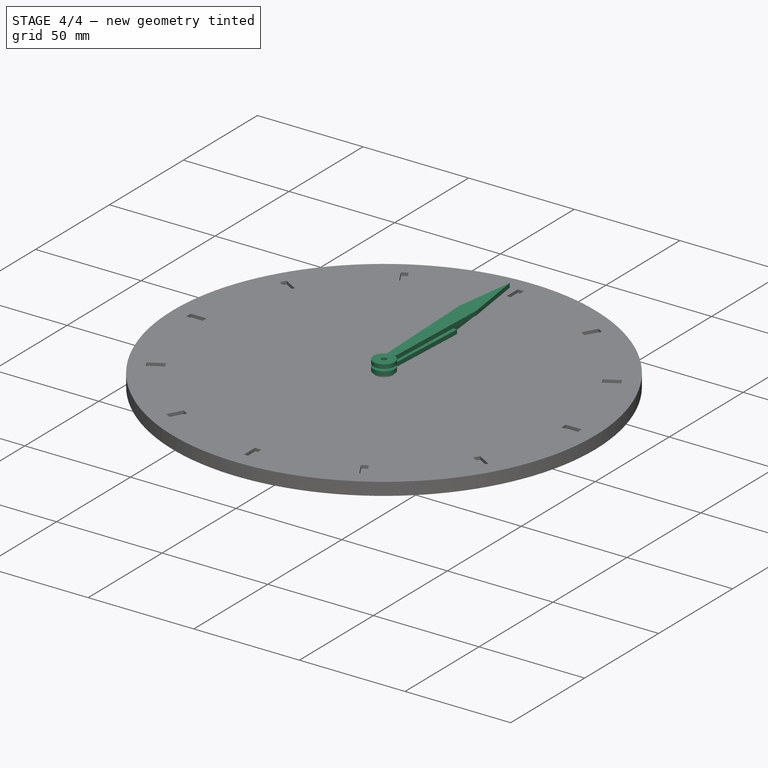
[diagram: stage 4 of 4 — iso view after this stage's code; geometry added in this stage tinted green]
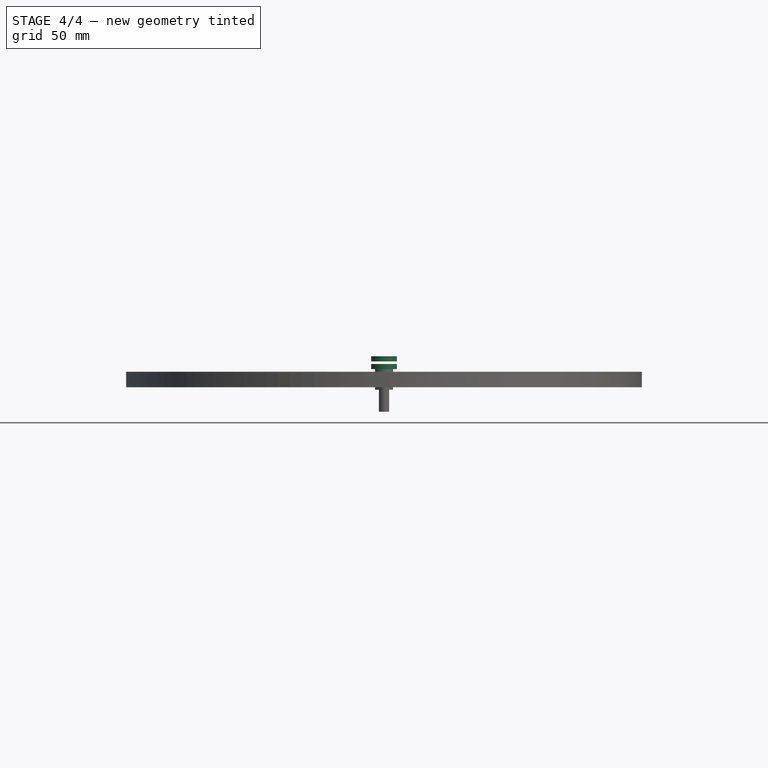
[diagram: stage 4 of 4 — front view after this stage's code; geometry added in this stage tinted green]
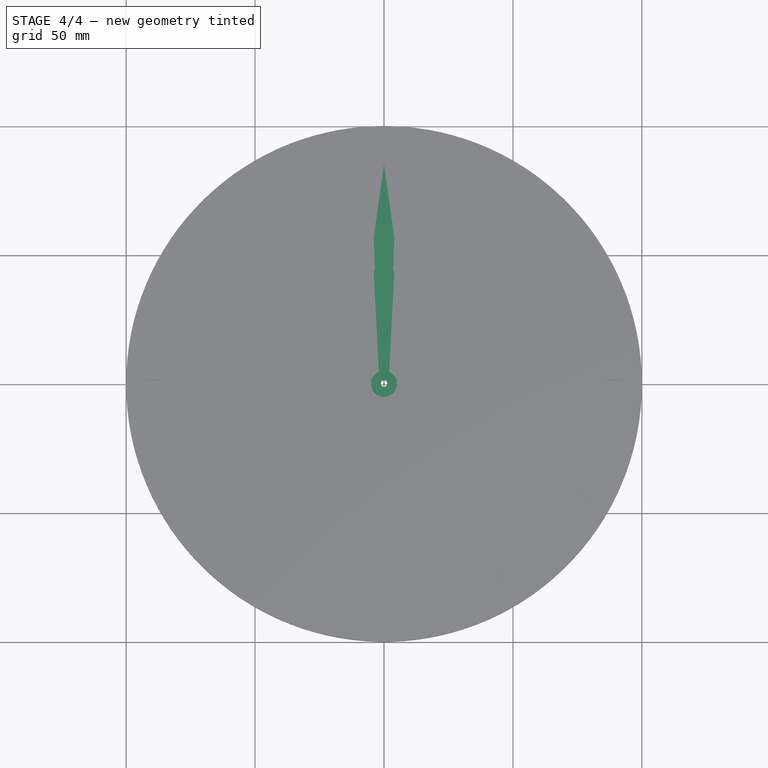
[diagram: stage 4 of 4 — top view after this stage's code; geometry added in this stage tinted green]
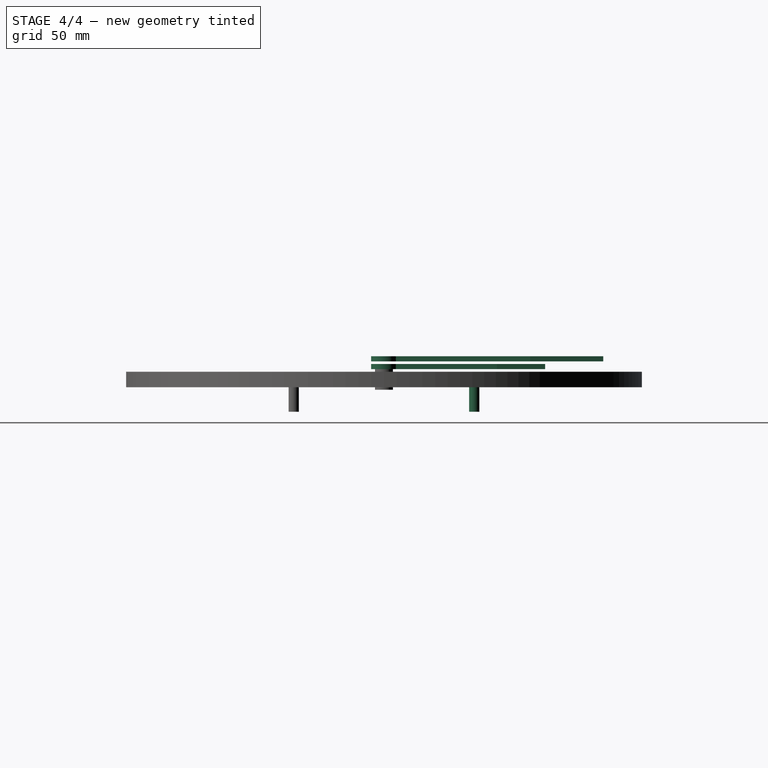
[diagram: stage 4 of 4 — right view after this stage's code; geometry added in this stage tinted green]
FEATURE [Sketcher::SketchObject] Sketch014  label="TenMinuteMarksShape"
  FullyConstrained = true
  sketch-geometry (6):
    g0: Circle CenterX=0 CenterY=0 CenterZ=0 NormalX=0 NormalY=0 NormalZ=1 AngleXU=0 Radius=85
    g1: Circle CenterX=0 CenterY=0 CenterZ=0 NormalX=0 NormalY=0 NormalZ=1 AngleXU=0 Radius=92.5
    g2: LineSegment StartX=-1.5 StartY=84.9868 StartZ=0 EndX=-1.5 EndY=92.4878 EndZ=0
    g3: LineSegment StartX=1.5 StartY=84.9868 StartZ=0 EndX=1.5 EndY=92.4878 EndZ=0
    g4: ArcOfCircle CenterX=0 CenterY=0 CenterZ=0 NormalX=0 NormalY=0 NormalZ=1 AngleXU=0 Radius=92.5 StartAngle=1.55458 EndAngle=1.58701
    g5: ArcOfCircle CenterX=0 CenterY=0 CenterZ=0 NormalX=0 NormalY=0 NormalZ=1 AngleXU=0 Radius=85 StartAngle=1.55315 EndAngle=1.58844
  constraints (16):
    c: Coincident(g0,g-1)
    c: Coincident(g1,g0)
    c: Diameter(g0) = 170
    c: Diameter(g1) = 185
    c: PointOnObject(g2,g0)
    c: PointOnObject(g2,g1)
    c: Vertical(g2)
    c: Vertical(g3)
    c: Coincident(g4,g0)
    c: Coincident(g4,g2)
    c: Coincident(g4,g3)
    c: Coincident(g5,g4)
    c: Coincident(g5,g2)
    c: Coincident(g5,g3)
    c: DistanceX(g2,g4) = 1.5
    c: DistanceX(g4,g3) = 1.5
FEATURE [Sketcher::SketchObject] Sketch015  label="MinuteMarks"
  FullyConstrained = true
  sketch-geometry (10):
    g0: Circle CenterX=0 CenterY=0 CenterZ=0 NormalX=0 NormalY=0 NormalZ=1 AngleXU=0 Radius=85
    g1: Circle CenterX=0 CenterY=0 CenterZ=0 NormalX=0 NormalY=0 NormalZ=1 AngleXU=0 Radius=92.5
    g2: LineSegment StartX=8.88492 StartY=84.5344 StartZ=0 EndX=9.66888 EndY=91.9933 EndZ=0
    g3: LineSegment StartX=17.6725 StartY=83.1425 StartZ=0 EndX=19.2318 EndY=90.4787 EndZ=0
    g4: LineSegment StartX=26.2664 StartY=80.8398 StartZ=0 EndX=28.5841 EndY=87.9727 EndZ=0
    g5: LineSegment StartX=34.5726 StartY=77.6514 StartZ=0 EndX=37.6231 EndY=84.503 EndZ=0
    g6: LineSegment StartX=0 StartY=0 StartZ=0 EndX=37.6231 EndY=84.503 EndZ=0
    g7: LineSegment StartX=0 StartY=0 StartZ=0 EndX=28.5841 EndY=87.9727 EndZ=0
    g8: LineSegment StartX=0 StartY=0 StartZ=0 EndX=19.2318 EndY=90.4787 EndZ=0
    g9: LineSegment StartX=0 StartY=0 StartZ=0 EndX=9.66888 EndY=91.9933 EndZ=0
  constraints (28):
    c: Coincident(g0,g-1)
    c: Coincident(g1,g0)
    c: Diameter(g0) = 170
    c: Diameter(g1) = 185
    c: PointOnObject(g2,g0)
    c: PointOnObject(g2,g1)
    c: PointOnObject(g3,g0)
    c: PointOnObject(g3,g1)
    c: PointOnObject(g4,g0)
    c: PointOnObject(g4,g1)
    c: PointOnObject(g5,g0)
    c: PointOnObject(g5,g1)
    c: Coincident(g6,g0)
    c: Coincident(g6,g5)
    c: Coincident(g7,g0)
    c: Coincident(g7,g4)
    c: Coincident(g8,g0)
    c: Coincident(g8,g3)
    c: Coincident(g9,g0)
    c: Coincident(g9,g2)
    c: PointOnObject(g2,g9)
    c: PointOnObject(g3,g8)
    c: PointOnObject(g4,g7)
    c: PointOnObject(g5,g6)
    c: Angle(g-1,g6) = 1.15192
    c: Angle(g-1,g7) = 1.25664
    c: Angle(g-1,g8) = 1.36136
    c: Angle(g-1,g9) = 1.46608
FEATURE [Sketcher::SketchObject] Sketch016  label="MinuteHandShape"
  FullyConstrained = true
  sketch-geometry (7):
    g0: ArcOfCircle CenterX=0 CenterY=0 CenterZ=0 NormalX=0 NormalY=0 NormalZ=1 AngleXU=0 Radius=5 StartAngle=1.98231 EndAngle=7.44246
    g1: LineSegment StartX=-2 StartY=4.58258 StartZ=0 EndX=-4 EndY=56.6667 EndZ=0
    g2: LineSegment StartX=-4 StartY=56.6667 StartZ=0 EndX=4e-16 EndY=85 EndZ=0
    g3: LineSegment StartX=4e-16 StartY=85 StartZ=0 EndX=4 EndY=56.6667 EndZ=0
    g4: LineSegment StartX=4 StartY=56.6667 StartZ=0 EndX=2 EndY=4.58258 EndZ=0
    g5: Circle CenterX=0 CenterY=0 CenterZ=0 NormalX=0 NormalY=0 NormalZ=1 AngleXU=0 Radius=1.25
    g6: LineSegment StartX=-2 StartY=4.58258 StartZ=0 EndX=2 EndY=4.58258 EndZ=0
  constraints (19):
    c: Coincident(g0,g-1)
    c: Coincident(g1,g0)
    c: Coincident(g2,g1)
    c: PointOnObject(g2,g-2)
    c: Coincident(g3,g2)
    c: Coincident(g4,g3)
    c: Coincident(g4,g0)
    c: Symmetric(g1,g3,g-2)
    c: Coincident(g5,g0)
    c: Diameter(g5) = 2.5
    c: Diameter(g0) = 10
    c: DistanceX(g0,g0) = 4
    c: Coincident(g6,g0)
    c: Coincident(g6,g0)
    c: Horizontal(g6)
    c: DistanceY(g0,g2) = 85
    c: DistanceX(g1,g3) = 8
    c: DistanceY(g0,g1) = 56.6667
    c: DistanceY(g1,g2) = 28.3333
FEATURE [Sketcher::SketchObject] Sketch017  label="BrassInlayShape"
  FullyConstrained = true
  sketch-geometry (2):
    g0: Circle CenterX=0 CenterY=0 CenterZ=0 NormalX=0 NormalY=0 NormalZ=1 AngleXU=0 Radius=47.5
    g1: Circle CenterX=0 CenterY=0 CenterZ=0 NormalX=0 NormalY=0 NormalZ=1 AngleXU=0 Radius=42.5
  constraints (4):
    c: Coincident(g0,g-1)
    c: Coincident(g1,g0)
    c: Diameter(g0) = 95
    c: Diameter(g1) = 85
FEATURE [Sketcher::SketchObject] Sketch018  label="HourHandShape"
  FullyConstrained = true
  sketch-geometry (9):
    g0: Circle CenterX=0 CenterY=0 CenterZ=0 NormalX=0 NormalY=0 NormalZ=1 AngleXU=0 Radius=3
    g1: ArcOfCircle CenterX=0 CenterY=0 CenterZ=0 NormalX=0 NormalY=0 NormalZ=1 AngleXU=0 Radius=5 StartAngle=1.98231 EndAngle=7.44246
    g2: LineSegment StartX=-2 StartY=4.58258 StartZ=0 EndX=-4 EndY=43.75 EndZ=0
    g3: LineSegment StartX=4 StartY=43.75 StartZ=0 EndX=2 EndY=4.58258 EndZ=0
    g4: LineSegment StartX=-4 StartY=43.75 StartZ=0 EndX=-2 EndY=43.75 EndZ=0
    g5: LineSegment StartX=4 StartY=43.75 StartZ=0 EndX=2 EndY=43.75 EndZ=0
    g6: LineSegment StartX=2 StartY=43.75 StartZ=0 EndX=0 EndY=62.5 EndZ=0
    g7: LineSegment StartX=-2 StartY=43.75 StartZ=0 EndX=0 EndY=62.5 EndZ=0
    g8: LineSegment StartX=-2 StartY=4.58258 StartZ=0 EndX=2 EndY=4.58258 EndZ=0
  constraints (25):
    c: Coincident(g0,g-1)
    c: Diameter(g0) = 6
    c: Coincident(g1,g0)
    c: Coincident(g2,g1)
    c: Coincident(g3,g1)
    c: Coincident(g4,g2)
    c: Horizontal(g4)
    c: Coincident(g5,g3)
    c: Horizontal(g5)
    c: Coincident(g6,g5)
    c: Coincident(g7,g4)
    c: Coincident(g7,g6)
    c: Equal(g4,g5)
    c: Symmetric(g4,g5,g-2)
    c: Coincident(g8,g1)
    c: Coincident(g8,g1)
    c: Horizontal(g8)
    c: Diameter(g1) = 10
    c: PointOnObject(g6,g-2)
    c: DistanceX(g1,g1) = 4
    c: DistanceX(g2,g3) = 8
    c: DistanceX(g4,g5) = 4
    c: DistanceY(g0,g6) = 62.5
    c: DistanceY(g0,g3) = 43.75
    c: DistanceY(g3,g6) = 18.75
FEATURE [Part::FeaturePython] Array  label="MinuteMarksArray"  # Draft array (typed FeaturePython)
  Angle = 360
  ArrayType = 1
  Axis = (0,0,1)
  Base = -> Sketch015
  Center = (0,0,0)
  Count = 12
  Fuse = false
  IntervalAxis = (0,0,0)
  IntervalX = (50,0,0)
  IntervalY = (0,50,0)
  IntervalZ = (0,0,50)
  NumberCircles = 3
  NumberPolar = 12
  NumberX = 2
  NumberY = 2
  NumberZ = 1
  RadialDistance = 50
  Symmetry = 1
  TangentialDistance = 25
FEATURE [Sketcher::SketchObject] Sketch019  label="MinuteMarksOutline"
  FullyConstrained = true
  sketch-geometry (2):
    g0: Circle CenterX=0 CenterY=0 CenterZ=0 NormalX=0 NormalY=0 NormalZ=1 AngleXU=0 Radius=92.5
    g1: Circle CenterX=0 CenterY=0 CenterZ=0 NormalX=0 NormalY=0 NormalZ=1 AngleXU=0 Radius=85
  constraints (4):
    c: Coincident(g0,g-1)
    c: Coincident(g1,g0)
    c: Diameter(g0) = 185
    c: Diameter(g1) = 170
FEATURE [Part::Extrusion] Extrude  label="HourHand"
  Base = -> Sketch018
  Dir = (0,0,1)
  DirMode = 2
  FaceMakerClass = Part::FaceMakerBullseye
  LengthFwd = 2
  LengthRev = 0
  Placement = pos=(0,0,1) rot=(0,0,1;0rad)
  Solid = true
  Symmetric = false
FEATURE [Part::Extrusion] Extrude001  label="MinuteHand"
  Base = -> Sketch016
  Dir = (0,0,1)
  DirMode = 2
  FaceMakerClass = Part::FaceMakerBullseye
  LengthFwd = 2
  LengthRev = 0
  Placement = pos=(0,0,4) rot=(0,0,1;0rad)
  Solid = true
  Symmetric = false
FEATURE [Sketcher::SketchObject] Sketch020  label="DialPlateMountShape"
  FullyConstrained = true
  Placement = pos=(0,0,0) rot=(1,0,0;1.5708rad)
  sketch-geometry (6):
    g0: LineSegment StartX=0 StartY=-10 StartZ=0 EndX=0 EndY=2 EndZ=0
    g1: LineSegment StartX=0 StartY=2 StartZ=0 EndX=10 EndY=2 EndZ=0
    g2: LineSegment StartX=10 StartY=2 StartZ=0 EndX=10 EndY=0 EndZ=0
    g3: LineSegment StartX=10 StartY=0 StartZ=0 EndX=2 EndY=0 EndZ=0
    g4: LineSegment StartX=2 StartY=0 StartZ=0 EndX=2 EndY=-10 EndZ=0
    g5: LineSegment StartX=2 StartY=-10 StartZ=0 EndX=0 EndY=-10 EndZ=0
  constraints (18):
    c: PointOnObject(g0,g-2)
    c: PointOnObject(g0,g-2)
    c: Coincident(g1,g0)
    c: Horizontal(g1)
    c: Coincident(g2,g1)
    c: PointOnObject(g2,g-1)
    c: Vertical(g2)
    c: Coincident(g3,g2)
    c: PointOnObject(g3,g-1)
    c: Coincident(g4,g3)
    c: Vertical(g4)
    c: Coincident(g5,g4)
    c: Coincident(g5,g0)
    c: Horizontal(g5)
    c: Distance(g2) = 2
    c: Distance(g1) = 10
    c: Distance(g5) = 2
    c: Distance(g0) = 12
FEATURE [Part::Revolution] Revolve  label="DialPlateMountTop"
  Angle = 360
  Axis = (0,0,1)
  Base = (0,0,0)
  FaceMakerClass = Part::FaceMakerBullseye
  Placement = pos=(0,35,-5.5) rot=(0,0,1;0rad)
  Solid = true
  Source = -> Sketch020
  Symmetric = false
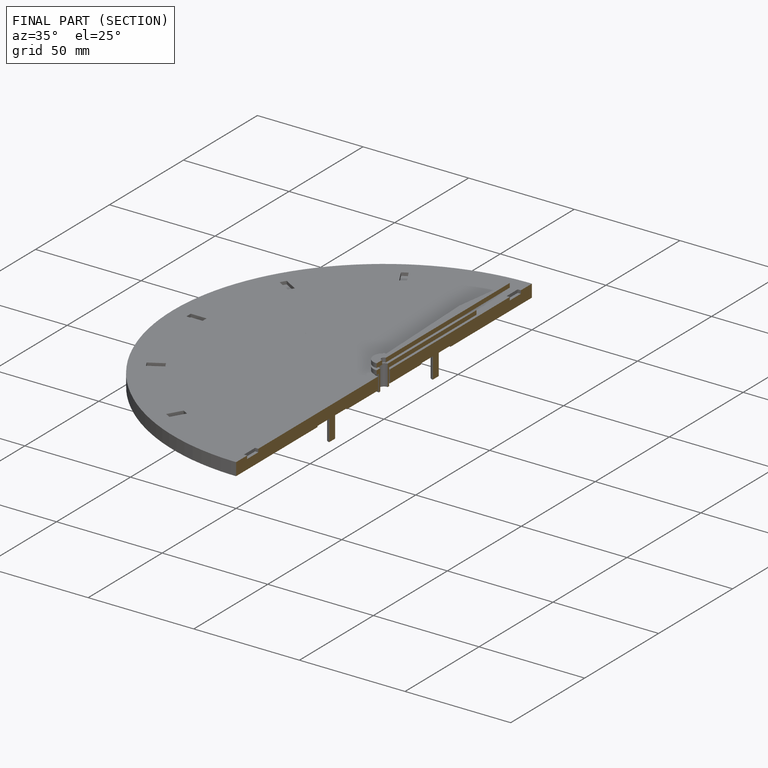
[diagram: finished part — half-section view (interior)]
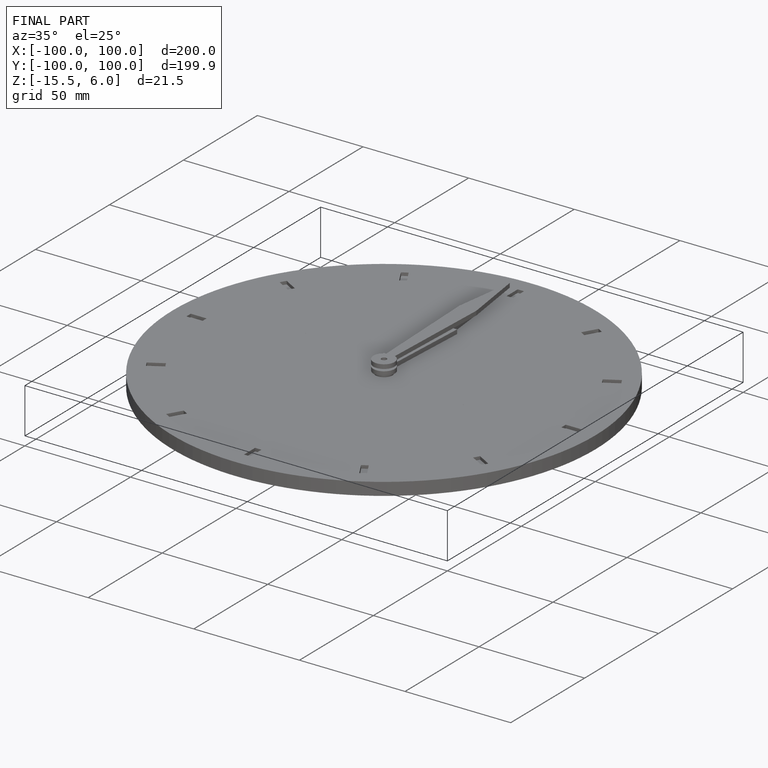
[diagram: finished part — iso view with bounding-box wireframe]
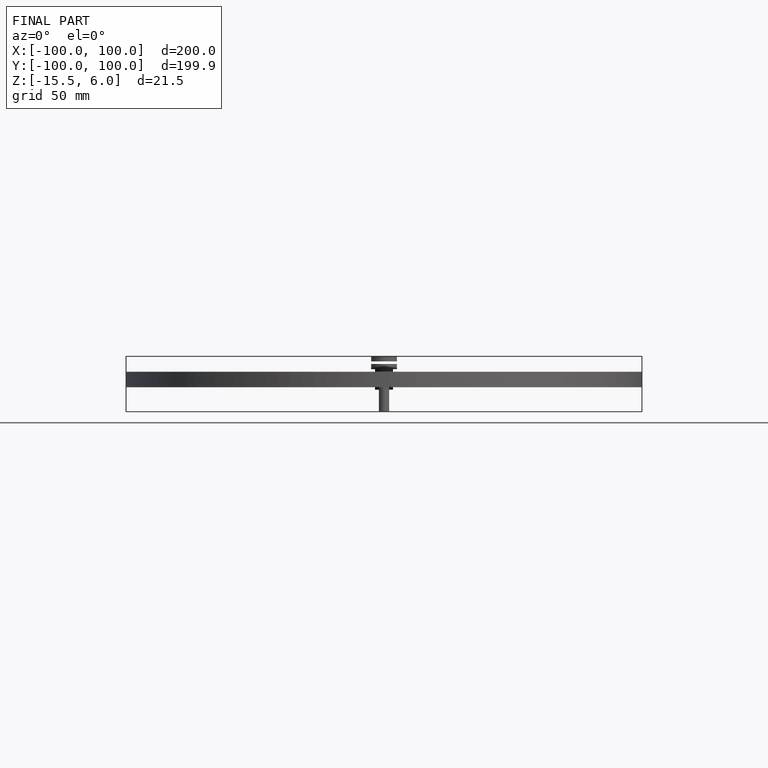
[diagram: finished part — front view with bounding-box wireframe]
